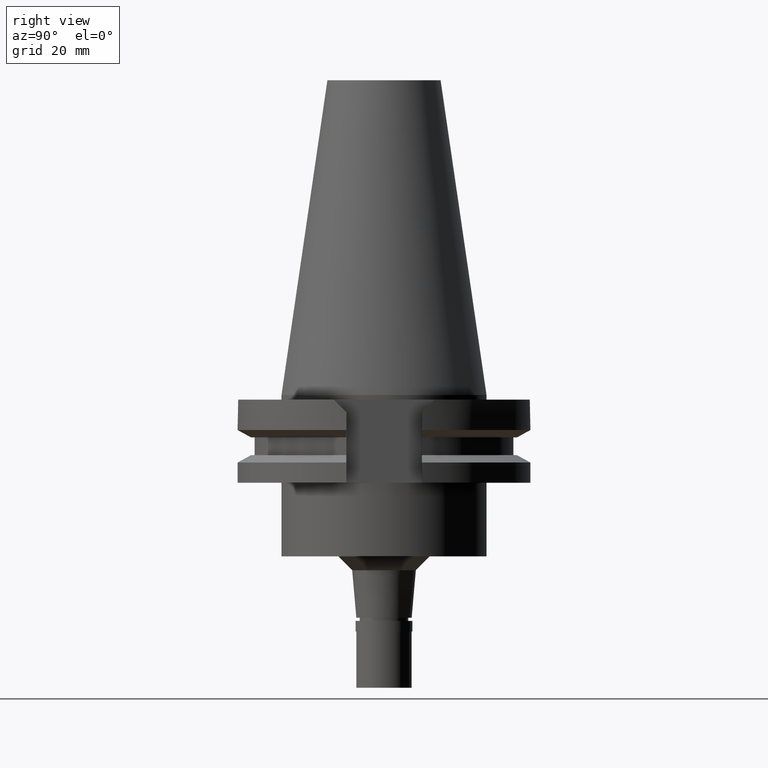
[diagram: clean part render]
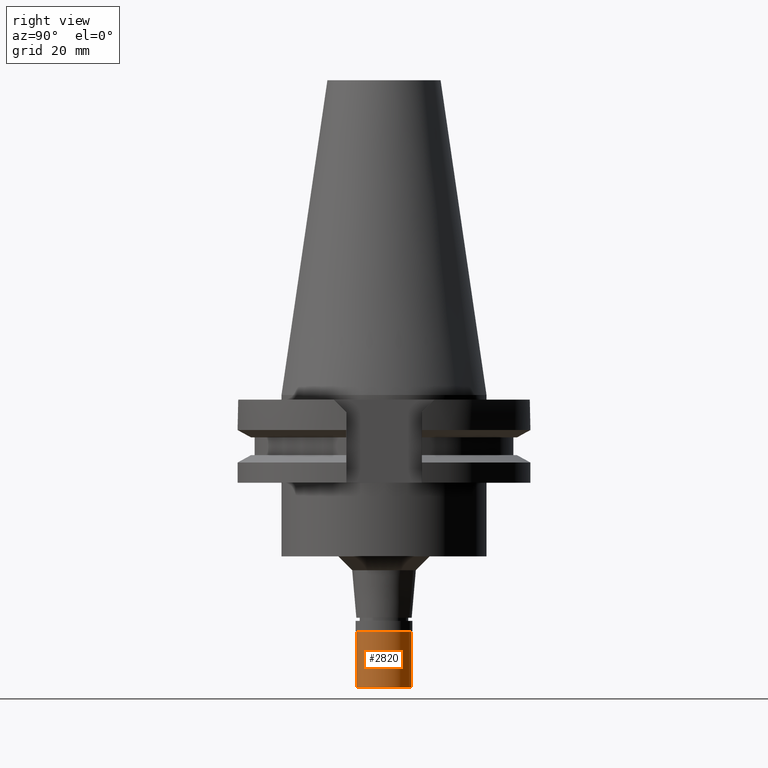
[diagram: same view with one face highlighted and labeled with its STEP entity id]
A machine part, right view. The second image highlights one B-rep face of the part: STEP entity #2820.
In plain terms, the highlighted cylindrical surface (edge-blend (fillet) strip) has radius 6 mm, axis along (0, 0, 1).
Its self-contained STEP definition (entity closure, byte-faithful):
#15 = EDGE_CURVE ( 'NONE', #1074, #638, #1328, .T. ) ;
#59 = DIRECTION ( 'NONE',  ( 0.0000000000000000000, 0.0000000000000000000, -1.000000000000000000 ) ) ;
#60 = CIRCLE ( 'NONE', #945, 6.000000000000000000 ) ;
#128 = LINE ( 'NONE', #3070, #2229 ) ;
#187 = CARTESIAN_POINT ( 'NONE',  ( 0.0000000000000000000, -6.000000000000000000, -14.50000000000000000 ) ) ;
#237 = ORIENTED_EDGE ( 'NONE', *, *, #2897, .T. ) ;
#246 = EDGE_LOOP ( 'NONE', ( #1723, #2833, #237, #1917 ) ) ;
#396 = DIRECTION ( 'NONE',  ( 0.0000000000000000000, 0.0000000000000000000, -1.000000000000000000 ) ) ;
#410 = EDGE_CURVE ( 'NONE', #1476, #956, #128, .T. ) ;
#531 = CARTESIAN_POINT ( 'NONE',  ( 0.0000000000000000000, 6.000000000000000000, -2.299999999999999822 ) ) ;
#631 = DIRECTION ( 'NONE',  ( 0.0000000000000000000, 1.000000000000000000, 0.0000000000000000000 ) ) ;
#638 = VERTEX_POINT ( 'NONE', #697 ) ;
#697 = CARTESIAN_POINT ( 'NONE',  ( 0.0000000000000000000, 6.000000000000000000, -14.50000000000000000 ) ) ;
#750 = AXIS2_PLACEMENT_3D ( 'NONE', #2199, #3176, #960 ) ;
#812 = CARTESIAN_POINT ( 'NONE',  ( 0.0000000000000000000, -6.000000000000000000, -2.299999999999999822 ) ) ;
#813 = CARTESIAN_POINT ( 'NONE',  ( 0.0000000000000000000, 6.000000000000000000, -2.299999999999999822 ) ) ;
#945 = AXIS2_PLACEMENT_3D ( 'NONE', #1013, #2264, #3007 ) ;
#956 = VERTEX_POINT ( 'NONE', #187 ) ;
#960 = DIRECTION ( 'NONE',  ( 0.0000000000000000000, 1.000000000000000000, 0.0000000000000000000 ) ) ;
#974 = VECTOR ( 'NONE', #59, 1000.000000000000000 ) ;
#1013 = CARTESIAN_POINT ( 'NONE',  ( 0.0000000000000000000, 0.0000000000000000000, -14.50000000000000000 ) ) ;
#1074 = VERTEX_POINT ( 'NONE', #531 ) ;
#1328 = LINE ( 'NONE', #813, #974 ) ;
#1359 = DIRECTION ( 'NONE',  ( 0.0000000000000000000, 0.0000000000000000000, -1.000000000000000000 ) ) ;
#1476 = VERTEX_POINT ( 'NONE', #812 ) ;
#1486 = AXIS2_PLACEMENT_3D ( 'NONE', #2589, #396, #631 ) ;
#1723 = ORIENTED_EDGE ( 'NONE', *, *, #2541, .T. ) ;
#1917 = ORIENTED_EDGE ( 'NONE', *, *, #15, .F. ) ;
#1962 = FACE_OUTER_BOUND ( 'NONE', #246, .T. ) ;
#2199 = CARTESIAN_POINT ( 'NONE',  ( 0.0000000000000000000, 0.0000000000000000000, -15.22500000000000142 ) ) ;
#2229 = VECTOR ( 'NONE', #1359, 1000.000000000000000 ) ;
#2264 = DIRECTION ( 'NONE',  ( 0.0000000000000000000, 0.0000000000000000000, 1.000000000000000000 ) ) ;
#2541 = EDGE_CURVE ( 'NONE', #1074, #1476, #2965, .T. ) ;
#2589 = CARTESIAN_POINT ( 'NONE',  ( 0.0000000000000000000, 0.0000000000000000000, -2.299999999999999822 ) ) ;
#2820 = ADVANCED_FACE ( 'NONE', ( #1962 ), #2948, .T. ) ;
#2833 = ORIENTED_EDGE ( 'NONE', *, *, #410, .T. ) ;
#2897 = EDGE_CURVE ( 'NONE', #956, #638, #60, .T. ) ;
#2948 = CYLINDRICAL_SURFACE ( 'NONE', #750, 6.000000000000000000 ) ;
#2965 = CIRCLE ( 'NONE', #1486, 6.000000000000000000 ) ;
#3007 = DIRECTION ( 'NONE',  ( 0.0000000000000000000, -1.000000000000000000, 0.0000000000000000000 ) ) ;
#3070 = CARTESIAN_POINT ( 'NONE',  ( 0.0000000000000000000, -6.000000000000000000, -2.299999999999999822 ) ) ;
#3176 = DIRECTION ( 'NONE',  ( 0.0000000000000000000, 0.0000000000000000000, 1.000000000000000000 ) ) ;